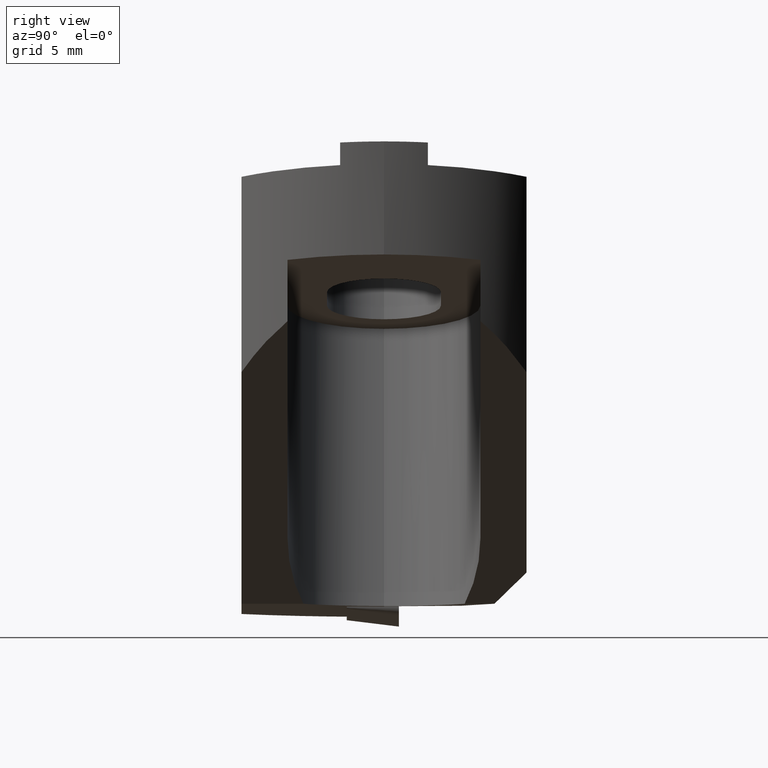
[diagram: clean part render]
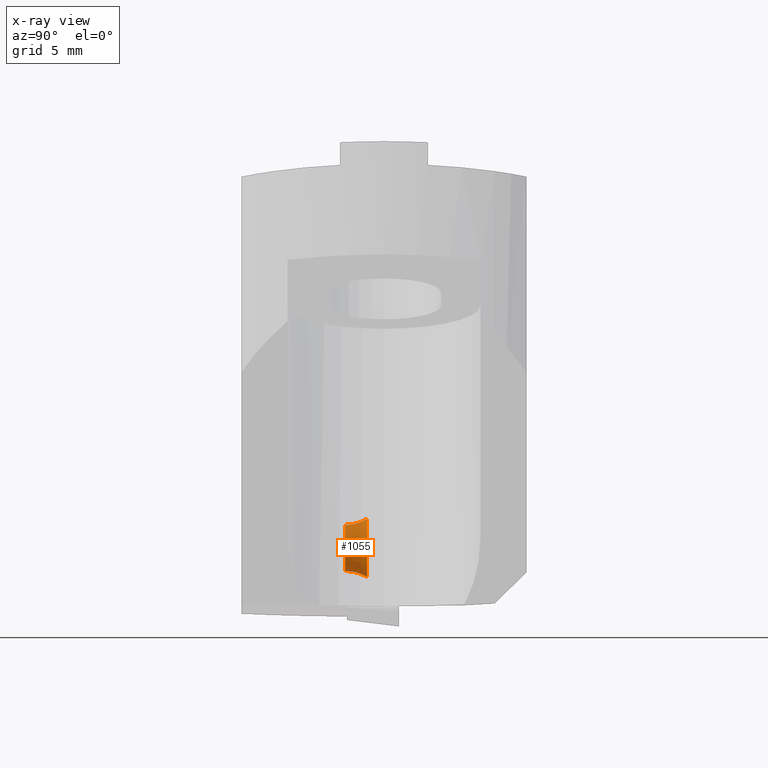
[diagram: x-ray — body ghosted, one internal face saturated and labeled with its STEP entity id]
A machine part, right view, then the same camera in x-ray: the body is ghosted and one INTERNAL B-rep face — a face not visible from any outside direction — is saturated and labeled: STEP entity #1055.
In plain terms, the highlighted toroidal blend (fillet) surface has major radius 3.05 mm and minor (blend) radius 2 mm.
Its self-contained STEP definition (entity closure, byte-faithful):
#599=EDGE_CURVE('NONE',#1119,#999,#1705,.T.);
#671=VERTEX_POINT('NONE',#1781);
#687=EDGE_CURVE('NONE',#999,#671,#1802,.T.);
#693=VERTEX_POINT('NONE',#1808);
#843=EDGE_CURVE('NONE',#1119,#693,#1974,.T.);
#999=VERTEX_POINT('NONE',#2150);
#1055=ADVANCED_FACE('NONE',(#2213),#2214,.F.);
#1059=EDGE_CURVE('NONE',#693,#671,#2218,.T.);
#1119=VERTEX_POINT('NONE',#2283);
#1705=CIRCLE('',#2915,2.0);
#1781=CARTESIAN_POINT('',(-6.05837375299888,-1.77503267997125,-19.5902192744393));
#1802=CIRCLE('',#3066,1.05);
#1808=CARTESIAN_POINT('',(-6.05837375299888,-0.775032679971259,-19.8581684668704));
#1974=CIRCLE('',#3293,1.31794919243112);
#2150=CARTESIAN_POINT('',(-6.05837375299888,-1.77503267997125,-17.4902192744393));
#2213=FACE_OUTER_BOUND('',#3996,.T.);
#2214=TOROIDAL_SURFACE('',#3997,3.05,2.0);
#2218=CIRCLE('',#4002,2.0);
#2283=CARTESIAN_POINT('',(-6.05837375299888,-0.775032679971259,-17.2222700820081));
#2915=AXIS2_PLACEMENT_3D('',#4936,#4937,#4938);
#3066=AXIS2_PLACEMENT_3D('',#5045,#5046,#5047);
#3293=AXIS2_PLACEMENT_3D('',#5271,#5272,#5273);
#3996=EDGE_LOOP('',(#5610,#5611,#5612,#5613));
#3997=AXIS2_PLACEMENT_3D('',#5614,#5615,#5616);
#4002=AXIS2_PLACEMENT_3D('',#5617,#5618,#5619);
#4936=CARTESIAN_POINT('',(-6.05837375299888,-1.77503267997125,-15.4902192744393));
#4937=DIRECTION('',(-1.0,-3.74915180455534E-033,1.83694997605854E-016));
#4938=DIRECTION('',(-1.83694997605854E-016,6.12303176911189E-017,-1.0));
#5045=CARTESIAN_POINT('',(-6.05837375299888,-1.77503267997125,-18.5402192744393));
#5046=DIRECTION('',(7.49855125712043E-033,1.0,6.12303176911189E-017));
#5047=DIRECTION('',(1.83694997605854E-016,-6.12303176911189E-017,1.0));
#5271=CARTESIAN_POINT('',(-6.05837375299888,-0.775032679971259,-18.5402192744393));
#5272=DIRECTION('',(7.49855125712043E-033,1.0,6.12303176911189E-017));
#5273=DIRECTION('',(1.83694997605854E-016,-6.12303176911189E-017,1.0));
#5610=ORIENTED_EDGE('',*,*,#599,.T.);
#5611=ORIENTED_EDGE('',*,*,#687,.T.);
#5612=ORIENTED_EDGE('',*,*,#1059,.F.);
#5613=ORIENTED_EDGE('',*,*,#843,.F.);
#5614=CARTESIAN_POINT('',(-6.05837375299888,-1.77503267997125,-18.5402192744393));
#5615=DIRECTION('',(7.49855125712043E-033,1.0,6.12303176911189E-017));
#5616=DIRECTION('',(1.83694997605854E-016,-6.12303176911189E-017,1.0));
#5617=CARTESIAN_POINT('',(-6.05837375299888,-1.77503267997125,-21.5902192744393));
#5618=DIRECTION('',(1.0,-3.74939945256508E-033,-6.12303176911188E-017));
#5619=DIRECTION('',(6.12303176911188E-017,-6.12303176911189E-017,1.0));